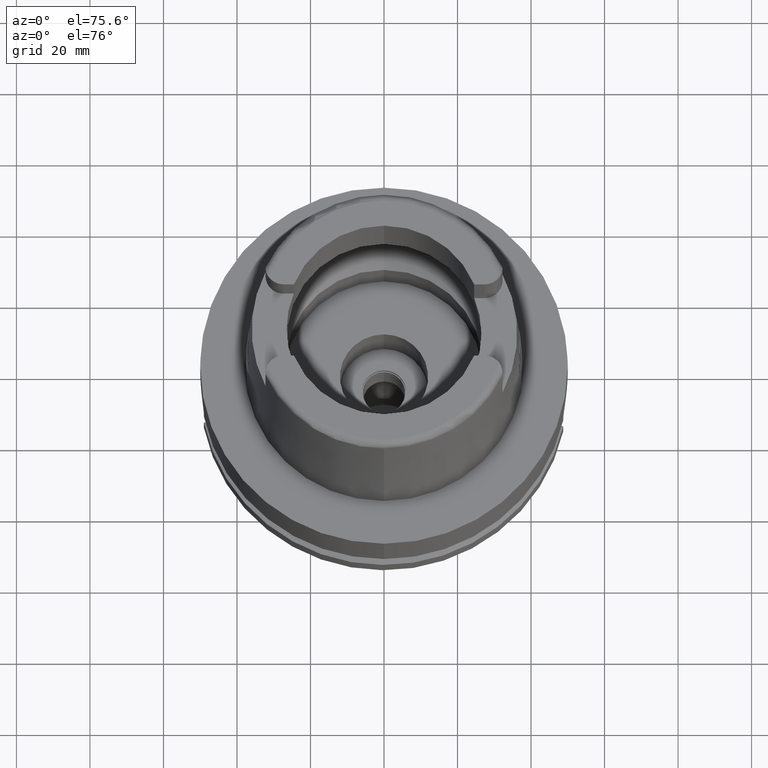
[diagram: clean part render]
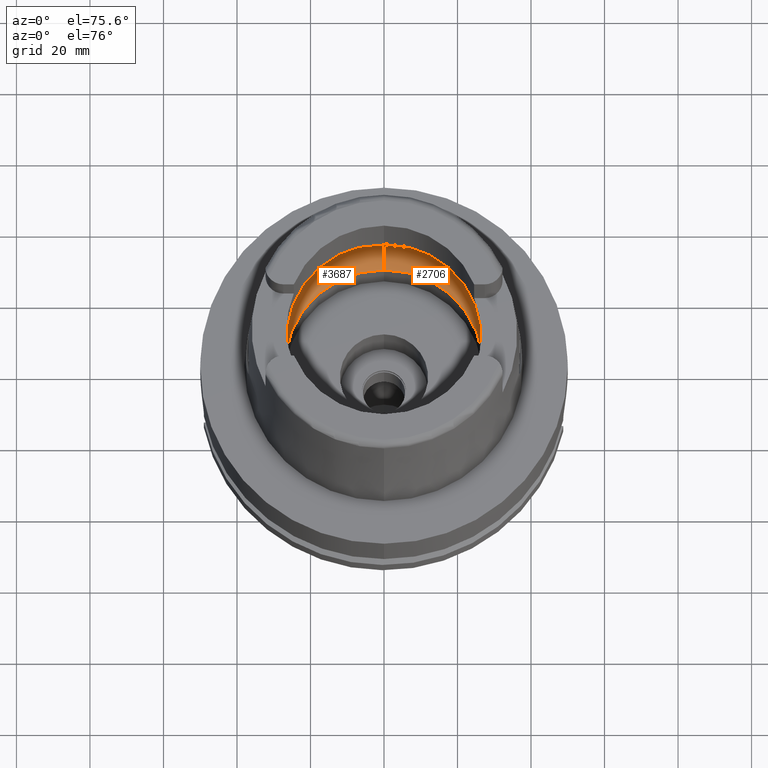
[diagram: same view with one multi-face feature highlighted, each face labeled with its STEP entity id]
A machine part, auxiliary view. The highlighted faces form ONE feature: a constant-radius fillet chain: 2 tangent blend faces with common blend radius 12 mm. The faces share edges in the B-rep.
Their STEP definitions:
[1] entity #3687 (Torus):
#65 = EDGE_CURVE ( 'NONE', #854, #2613, #1237, .T. ) ;
#137 = EDGE_CURVE ( 'NONE', #2026, #854, #5075, .T. ) ;
#346 = CIRCLE ( 'NONE', #4893, 26.89999999999999858 ) ;
#419 = CARTESIAN_POINT ( 'NONE',  ( 0.0000000000000000000, 0.0000000000000000000, 9.496624327025999790 ) ) ;
#473 = DIRECTION ( 'NONE',  ( 0.0000000000000000000, 0.0000000000000000000, -1.000000000000000000 ) ) ;
#481 = EDGE_CURVE ( 'NONE', #4848, #2912, #3531, .T. ) ;
#522 = CARTESIAN_POINT ( 'NONE',  ( -31.40918884336000616, -2.390158196043999705, 9.496624327025999790 ) ) ;
#620 = CARTESIAN_POINT ( 'NONE',  ( -31.46287568614665986, -1.684656700029165899, 9.190219625035021878 ) ) ;
#627 = CIRCLE ( 'NONE', #2604, 31.49999999999998934 ) ;
#635 = CARTESIAN_POINT ( 'NONE',  ( -31.48971910754000447, 0.8697454016785111097, 9.000000000000001776 ) ) ;
#716 = CARTESIAN_POINT ( 'NONE',  ( 0.0000000000000000000, -31.50000000000000000, 9.496624327025999790 ) ) ;
#753 = EDGE_CURVE ( 'NONE', #4848, #2026, #346, .T. ) ;
#816 = VERTEX_POINT ( 'NONE', #3267 ) ;
#848 = DIRECTION ( 'NONE',  ( -0.9971171061384295209, 0.07587803796965221503, 0.0000000000000000000 ) ) ;
#854 = VERTEX_POINT ( 'NONE', #716 ) ;
#866 = CARTESIAN_POINT ( 'NONE',  ( 0.0000000000000000000, 0.0000000000000000000, 9.496624327025999790 ) ) ;
#903 = DIRECTION ( 'NONE',  ( 0.0000000000000000000, -1.000000000000000000, 0.0000000000000000000 ) ) ;
#916 = CARTESIAN_POINT ( 'NONE',  ( 0.0000000000000000000, 19.50000000000000000, 9.496624327025999790 ) ) ;
#943 = EDGE_LOOP ( 'NONE', ( #1522, #5386, #3707, #5039, #5622, #5590, #1651 ) ) ;
#1081 = CARTESIAN_POINT ( 'NONE',  ( 0.0000000000000000000, 0.0000000000000000000, 0.04993178413037000635 ) ) ;
#1094 = CARTESIAN_POINT ( 'NONE',  ( -31.48971910754000447, -0.8697454018008697885, 8.999999999999998224 ) ) ;
#1141 = DIRECTION ( 'NONE',  ( -1.000000000000000000, 0.0000000000000000000, 0.0000000000000000000 ) ) ;
#1237 = CIRCLE ( 'NONE', #2677, 31.50000000000000000 ) ;
#1337 = AXIS2_PLACEMENT_3D ( 'NONE', #916, #5370, #3994 ) ;
#1367 = EDGE_CURVE ( 'NONE', #816, #2912, #627, .T. ) ;
#1467 = CARTESIAN_POINT ( 'NONE',  ( -31.48971910754000447, 0.0000000000000000000, 9.000000000000000000 ) ) ;
#1522 = ORIENTED_EDGE ( 'NONE', *, *, #65, .F. ) ;
#1556 = B_SPLINE_CURVE_WITH_KNOTS ( 'NONE', 3,
 ( #1973, #620, #1094, #3316 ),
 .UNSPECIFIED., .F., .F.,
 ( 4, 4 ),
 ( 0.0000000000000000000, 1.000000000000000000 ),
 .UNSPECIFIED. ) ;
#1651 = ORIENTED_EDGE ( 'NONE', *, *, #5334, .F. ) ;
#1959 = AXIS2_PLACEMENT_3D ( 'NONE', #4965, #1141, #4562 ) ;
#1973 = CARTESIAN_POINT ( 'NONE',  ( -31.40918884336000616, -2.390158196043999705, 9.496624327025999790 ) ) ;
#2026 = VERTEX_POINT ( 'NONE', #3949 ) ;
#2470 = AXIS2_PLACEMENT_3D ( 'NONE', #866, #2496, #4257 ) ;
#2489 = CARTESIAN_POINT ( 'NONE',  ( 0.0000000000000000000, 31.50000000000000000, 9.496624327025999790 ) ) ;
#2496 = DIRECTION ( 'NONE',  ( 0.0000000000000000000, 0.0000000000000000000, 1.000000000000000000 ) ) ;
#2604 = AXIS2_PLACEMENT_3D ( 'NONE', #4236, #3866, #848 ) ;
#2613 = VERTEX_POINT ( 'NONE', #522 ) ;
#2677 = AXIS2_PLACEMENT_3D ( 'NONE', #419, #473, #903 ) ;
#2774 = CARTESIAN_POINT ( 'NONE',  ( -31.40918884336000616, 2.390158196043999705, 9.496624327025999790 ) ) ;
#2835 = EDGE_CURVE ( 'NONE', #3004, #816, #4378, .T. ) ;
#2912 = VERTEX_POINT ( 'NONE', #2489 ) ;
#3004 = VERTEX_POINT ( 'NONE', #1467 ) ;
#3099 = CARTESIAN_POINT ( 'NONE',  ( 0.0000000000000000000, 26.89999999999999858, 0.04993178413038999730 ) ) ;
#3267 = CARTESIAN_POINT ( 'NONE',  ( -31.40918884336000616, 2.390158196043999705, 9.496624327025999790 ) ) ;
#3316 = CARTESIAN_POINT ( 'NONE',  ( -31.48971910754000447, 0.0000000000000000000, 9.000000000000000000 ) ) ;
#3364 = FACE_OUTER_BOUND ( 'NONE', #943, .T. ) ;
#3531 = CIRCLE ( 'NONE', #1337, 11.99999999999999822 ) ;
#3687 = ADVANCED_FACE ( 'NONE', ( #3364 ), #4402, .F. ) ;
#3706 = DIRECTION ( 'NONE',  ( 0.0000000000000000000, 1.000000000000000000, 0.0000000000000000000 ) ) ;
#3707 = ORIENTED_EDGE ( 'NONE', *, *, #753, .F. ) ;
#3866 = DIRECTION ( 'NONE',  ( 0.0000000000000000000, 0.0000000000000000000, -1.000000000000000000 ) ) ;
#3949 = CARTESIAN_POINT ( 'NONE',  ( 0.0000000000000000000, -26.89999999999999858, 0.04993178413037000635 ) ) ;
#3994 = DIRECTION ( 'NONE',  ( 0.0000000000000000000, 0.6166666666667049990, -0.7872243785746061429 ) ) ;
#4158 = CARTESIAN_POINT ( 'NONE',  ( -31.48971910754000447, 0.0000000000000000000, 9.000000000000000000 ) ) ;
#4236 = CARTESIAN_POINT ( 'NONE',  ( 0.0000000000000000000, 0.0000000000000000000, 9.496624327025999790 ) ) ;
#4257 = DIRECTION ( 'NONE',  ( 0.0000000000000000000, 1.000000000000000000, 0.0000000000000000000 ) ) ;
#4378 = B_SPLINE_CURVE_WITH_KNOTS ( 'NONE', 3,
 ( #4158, #635, #4559, #2774 ),
 .UNSPECIFIED., .F., .F.,
 ( 4, 4 ),
 ( 0.0000000000000000000, 1.000000000000000000 ),
 .UNSPECIFIED. ) ;
#4402 = TOROIDAL_SURFACE ( 'NONE', #2470, 19.50000000000000000, 12.00000000000000000 ) ;
#4559 = CARTESIAN_POINT ( 'NONE',  ( -31.46287568614665986, 1.684656699916923683, 9.190219624986275093 ) ) ;
#4562 = DIRECTION ( 'NONE',  ( 0.0000000000000000000, -0.6166666666667049990, -0.7872243785746061429 ) ) ;
#4848 = VERTEX_POINT ( 'NONE', #3099 ) ;
#4893 = AXIS2_PLACEMENT_3D ( 'NONE', #1081, #4988, #3706 ) ;
#4965 = CARTESIAN_POINT ( 'NONE',  ( 0.0000000000000000000, -19.50000000000000000, 9.496624327025999790 ) ) ;
#4988 = DIRECTION ( 'NONE',  ( 0.0000000000000000000, 0.0000000000000000000, 1.000000000000000000 ) ) ;
#5039 = ORIENTED_EDGE ( 'NONE', *, *, #481, .T. ) ;
#5075 = CIRCLE ( 'NONE', #1959, 11.99999999999999822 ) ;
#5334 = EDGE_CURVE ( 'NONE', #2613, #3004, #1556, .T. ) ;
#5370 = DIRECTION ( 'NONE',  ( 1.000000000000000000, 0.0000000000000000000, 0.0000000000000000000 ) ) ;
#5386 = ORIENTED_EDGE ( 'NONE', *, *, #137, .F. ) ;
#5590 = ORIENTED_EDGE ( 'NONE', *, *, #2835, .F. ) ;
#5622 = ORIENTED_EDGE ( 'NONE', *, *, #1367, .F. ) ;
[2] entity #2706 (Torus):
#137 = EDGE_CURVE ( 'NONE', #2026, #854, #5075, .T. ) ;
#145 = TOROIDAL_SURFACE ( 'NONE', #1847, 19.50000000000000000, 12.00000000000000000 ) ;
#314 = VERTEX_POINT ( 'NONE', #403 ) ;
#345 = ORIENTED_EDGE ( 'NONE', *, *, #3064, .F. ) ;
#403 = CARTESIAN_POINT ( 'NONE',  ( 31.40918884336000616, -2.390158196043999705, 9.496624327025999790 ) ) ;
#481 = EDGE_CURVE ( 'NONE', #4848, #2912, #3531, .T. ) ;
#513 = B_SPLINE_CURVE_WITH_KNOTS ( 'NONE', 3,
 ( #4007, #4405, #1799, #3923 ),
 .UNSPECIFIED., .F., .F.,
 ( 4, 4 ),
 ( 0.0000000000000000000, 1.000000000000000000 ),
 .UNSPECIFIED. ) ;
#683 = AXIS2_PLACEMENT_3D ( 'NONE', #1298, #1386, #2648 ) ;
#716 = CARTESIAN_POINT ( 'NONE',  ( 0.0000000000000000000, -31.50000000000000000, 9.496624327025999790 ) ) ;
#854 = VERTEX_POINT ( 'NONE', #716 ) ;
#881 = CARTESIAN_POINT ( 'NONE',  ( 31.40918884336000616, 2.390158196043999705, 9.496624327025999790 ) ) ;
#916 = CARTESIAN_POINT ( 'NONE',  ( 0.0000000000000000000, 19.50000000000000000, 9.496624327025999790 ) ) ;
#954 = VERTEX_POINT ( 'NONE', #4707 ) ;
#1126 = CARTESIAN_POINT ( 'NONE',  ( 31.48971910753999026, -0.8697454017312684638, 8.999999999999998224 ) ) ;
#1141 = DIRECTION ( 'NONE',  ( -1.000000000000000000, 0.0000000000000000000, 0.0000000000000000000 ) ) ;
#1187 = ORIENTED_EDGE ( 'NONE', *, *, #2126, .F. ) ;
#1298 = CARTESIAN_POINT ( 'NONE',  ( 0.0000000000000000000, 0.0000000000000000000, 9.496624327025999790 ) ) ;
#1337 = AXIS2_PLACEMENT_3D ( 'NONE', #916, #5370, #3994 ) ;
#1386 = DIRECTION ( 'NONE',  ( 0.0000000000000000000, 0.0000000000000000000, -1.000000000000000000 ) ) ;
#1604 = AXIS2_PLACEMENT_3D ( 'NONE', #3812, #5551, #5606 ) ;
#1799 = CARTESIAN_POINT ( 'NONE',  ( 31.48971910753999026, 0.8697454017787721314, 9.000000000000001776 ) ) ;
#1847 = AXIS2_PLACEMENT_3D ( 'NONE', #3968, #3626, #5373 ) ;
#1860 = EDGE_CURVE ( 'NONE', #314, #854, #2747, .T. ) ;
#1889 = CARTESIAN_POINT ( 'NONE',  ( 31.48971910754000447, 0.0000000000000000000, 9.000000000000000000 ) ) ;
#1959 = AXIS2_PLACEMENT_3D ( 'NONE', #4965, #1141, #4562 ) ;
#2026 = VERTEX_POINT ( 'NONE', #3949 ) ;
#2029 = AXIS2_PLACEMENT_3D ( 'NONE', #4148, #4065, #3643 ) ;
#2126 = EDGE_CURVE ( 'NONE', #4990, #954, #513, .T. ) ;
#2489 = CARTESIAN_POINT ( 'NONE',  ( 0.0000000000000000000, 31.50000000000000000, 9.496624327025999790 ) ) ;
#2648 = DIRECTION ( 'NONE',  ( 0.0000000000000000000, 1.000000000000000000, 0.0000000000000000000 ) ) ;
#2706 = ADVANCED_FACE ( 'NONE', ( #4476 ), #145, .F. ) ;
#2747 = CIRCLE ( 'NONE', #2029, 31.49999999999998934 ) ;
#2797 = CARTESIAN_POINT ( 'NONE',  ( 31.46287568614665986, -1.684656699965325632, 9.190219625007294724 ) ) ;
#2912 = VERTEX_POINT ( 'NONE', #2489 ) ;
#2978 = CIRCLE ( 'NONE', #1604, 26.89999999999999858 ) ;
#2987 = ORIENTED_EDGE ( 'NONE', *, *, #4089, .F. ) ;
#3062 = ORIENTED_EDGE ( 'NONE', *, *, #137, .T. ) ;
#3064 = EDGE_CURVE ( 'NONE', #954, #314, #3633, .T. ) ;
#3099 = CARTESIAN_POINT ( 'NONE',  ( 0.0000000000000000000, 26.89999999999999858, 0.04993178413038999730 ) ) ;
#3134 = CIRCLE ( 'NONE', #683, 31.50000000000000000 ) ;
#3531 = CIRCLE ( 'NONE', #1337, 11.99999999999999822 ) ;
#3542 = ORIENTED_EDGE ( 'NONE', *, *, #481, .F. ) ;
#3626 = DIRECTION ( 'NONE',  ( 0.0000000000000000000, 0.0000000000000000000, 1.000000000000000000 ) ) ;
#3633 = B_SPLINE_CURVE_WITH_KNOTS ( 'NONE', 3,
 ( #1889, #1126, #2797, #4615 ),
 .UNSPECIFIED., .F., .F.,
 ( 4, 4 ),
 ( 0.0000000000000000000, 1.000000000000000000 ),
 .UNSPECIFIED. ) ;
#3643 = DIRECTION ( 'NONE',  ( 0.9971171061384295209, -0.07587803796965221503, 0.0000000000000000000 ) ) ;
#3812 = CARTESIAN_POINT ( 'NONE',  ( 0.0000000000000000000, 0.0000000000000000000, 0.04993178413038999730 ) ) ;
#3923 = CARTESIAN_POINT ( 'NONE',  ( 31.48971910754000447, 0.0000000000000000000, 9.000000000000000000 ) ) ;
#3949 = CARTESIAN_POINT ( 'NONE',  ( 0.0000000000000000000, -26.89999999999999858, 0.04993178413037000635 ) ) ;
#3968 = CARTESIAN_POINT ( 'NONE',  ( 0.0000000000000000000, 0.0000000000000000000, 9.496624327025999790 ) ) ;
#3994 = DIRECTION ( 'NONE',  ( 0.0000000000000000000, 0.6166666666667049990, -0.7872243785746061429 ) ) ;
#4007 = CARTESIAN_POINT ( 'NONE',  ( 31.40918884336000616, 2.390158196043999705, 9.496624327025999790 ) ) ;
#4065 = DIRECTION ( 'NONE',  ( 0.0000000000000000000, 0.0000000000000000000, -1.000000000000000000 ) ) ;
#4089 = EDGE_CURVE ( 'NONE', #2912, #4990, #3134, .T. ) ;
#4106 = ORIENTED_EDGE ( 'NONE', *, *, #5582, .F. ) ;
#4148 = CARTESIAN_POINT ( 'NONE',  ( 0.0000000000000000000, 0.0000000000000000000, 9.496624327025999790 ) ) ;
#4405 = CARTESIAN_POINT ( 'NONE',  ( 31.46287568614665986, 1.684656700008886121, 9.190219625026216477 ) ) ;
#4476 = FACE_OUTER_BOUND ( 'NONE', #5640, .T. ) ;
#4562 = DIRECTION ( 'NONE',  ( 0.0000000000000000000, -0.6166666666667049990, -0.7872243785746061429 ) ) ;
#4615 = CARTESIAN_POINT ( 'NONE',  ( 31.40918884336000616, -2.390158196043999705, 9.496624327025999790 ) ) ;
#4707 = CARTESIAN_POINT ( 'NONE',  ( 31.48971910754000447, 0.0000000000000000000, 9.000000000000000000 ) ) ;
#4848 = VERTEX_POINT ( 'NONE', #3099 ) ;
#4965 = CARTESIAN_POINT ( 'NONE',  ( 0.0000000000000000000, -19.50000000000000000, 9.496624327025999790 ) ) ;
#4990 = VERTEX_POINT ( 'NONE', #881 ) ;
#5026 = ORIENTED_EDGE ( 'NONE', *, *, #1860, .F. ) ;
#5075 = CIRCLE ( 'NONE', #1959, 11.99999999999999822 ) ;
#5370 = DIRECTION ( 'NONE',  ( 1.000000000000000000, 0.0000000000000000000, 0.0000000000000000000 ) ) ;
#5373 = DIRECTION ( 'NONE',  ( 0.0000000000000000000, 1.000000000000000000, 0.0000000000000000000 ) ) ;
#5551 = DIRECTION ( 'NONE',  ( 0.0000000000000000000, 0.0000000000000000000, 1.000000000000000000 ) ) ;
#5582 = EDGE_CURVE ( 'NONE', #2026, #4848, #2978, .T. ) ;
#5606 = DIRECTION ( 'NONE',  ( 0.0000000000000000000, -1.000000000000000000, 0.0000000000000000000 ) ) ;
#5640 = EDGE_LOOP ( 'NONE', ( #1187, #2987, #3542, #4106, #3062, #5026, #345 ) ) ;